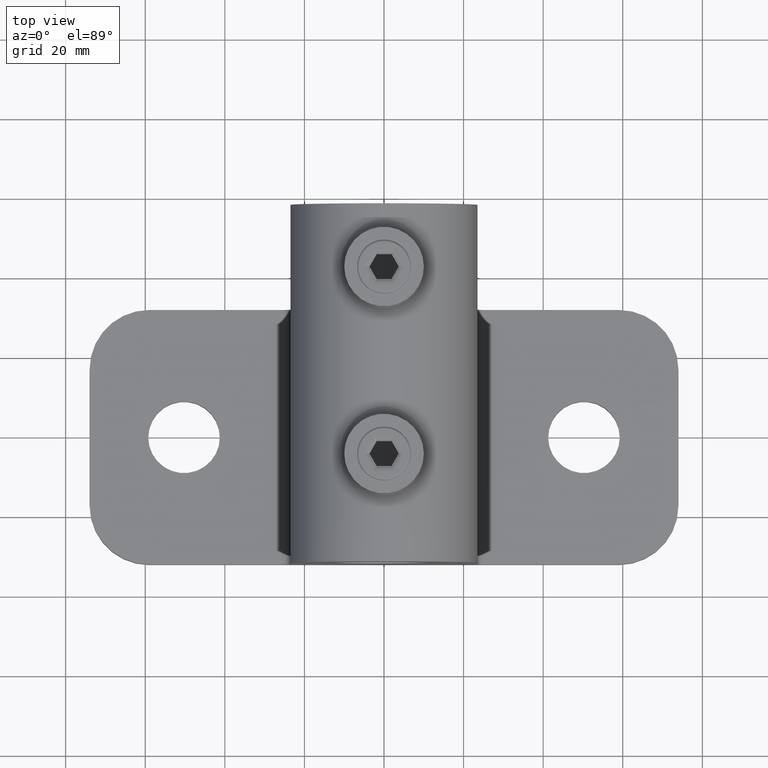
[diagram: clean part render]
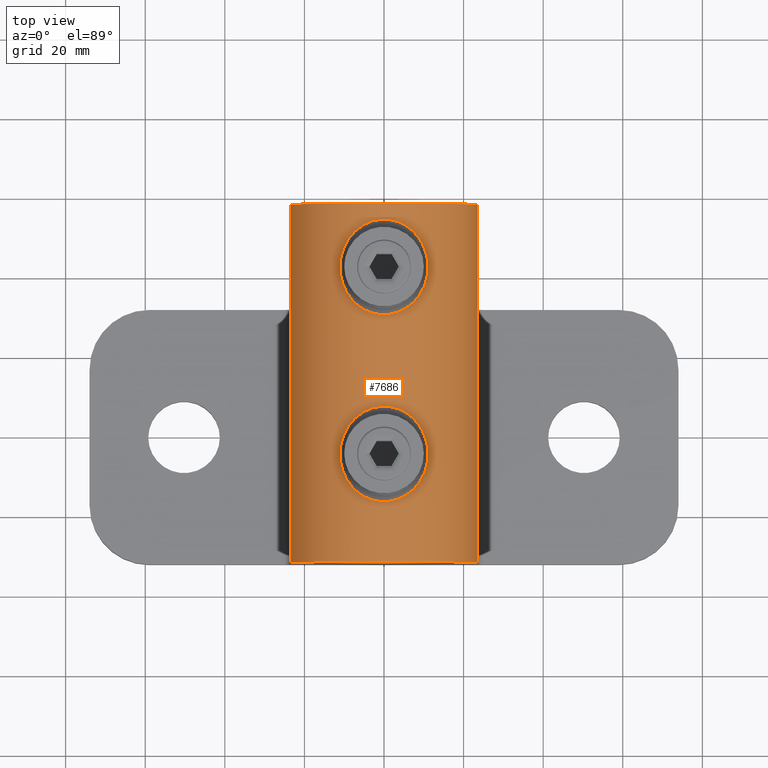
[diagram: same view with one face highlighted and labeled with its STEP entity id]
A machine part, top view. The second image highlights one B-rep face of the part: STEP entity #7686.
In plain terms, the highlighted cylindrical surface (partial cylindrical patch) has radius 23.5 mm, axis along (-0, -1, 0).
Its self-contained STEP definition (entity closure, byte-faithful):
#121 = CARTESIAN_POINT ( 'NONE',  ( -8.103348831627954500, 50.17509293145658900, 54.06010407994648400 ) ) ;
#157 = CARTESIAN_POINT ( 'NONE',  ( -2.469780579537794300, 6.703988613167270600, 55.37270949107873000 ) ) ;
#161 = CARTESIAN_POINT ( 'NONE',  ( 10.55586610991981500, -8.598058644879804600, 52.99620088965919300 ) ) ;
#220 = CARTESIAN_POINT ( 'NONE',  ( -3.187238685543294800, -16.49815538394374700, 55.28577807090088200 ) ) ;
#314 = CARTESIAN_POINT ( 'NONE',  ( 10.65684907534073700, -8.228870973245671300, 52.94494049807793300 ) ) ;
#327 = FACE_BOUND ( 'NONE', #4881, .T. ) ;
#363 = CARTESIAN_POINT ( 'NONE',  ( 4.588043577227941800, -15.92581076868567900, 55.05023048489103100 ) ) ;
#473 = CARTESIAN_POINT ( 'NONE',  ( -8.567352893849186300, -12.59758543217488100, 53.88407159401512600 ) ) ;
#504 = ORIENTED_EDGE ( 'NONE', *, *, #4589, .F. ) ;
#524 = VERTEX_POINT ( 'NONE', #4832 ) ;
#528 = CARTESIAN_POINT ( 'NONE',  ( -6.207143492603426800, 4.962066832698882400, 54.67318832223761400 ) ) ;
#543 = CARTESIAN_POINT ( 'NONE',  ( 11.04638734084501400, -4.431064152689651300, 52.74192196292376900 ) ) ;
#581 = CARTESIAN_POINT ( 'NONE',  ( -10.65999327473157300, -8.216487932979083200, 52.94333746456240400 ) ) ;
#583 = CARTESIAN_POINT ( 'NONE',  ( -2.100255021234504600, 6.788877360666340600, 55.40901085411737600 ) ) ;
#695 = CARTESIAN_POINT ( 'NONE',  ( 8.575454145850878600, 49.58696010016158300, 53.88091656205480700 ) ) ;
#723 = LINE ( 'NONE', #1919, #2838 ) ;
#735 = CARTESIAN_POINT ( 'NONE',  ( 5.252307260265248500, 5.567859657860299000, 54.90804544646285000 ) ) ;
#751 = CARTESIAN_POINT ( 'NONE',  ( 5.577358442402617900, 52.36973240773381400, 54.83081060664355300 ) ) ;
#796 = CARTESIAN_POINT ( 'NONE',  ( 11.06327841971134000, 42.18278321898981900, 52.73292639346325900 ) ) ;
#855 = CARTESIAN_POINT ( 'NONE',  ( 4.588306621135059200, 5.925811600081403600, 55.05022169272760400 ) ) ;
#905 = CARTESIAN_POINT ( 'NONE',  ( -7.337523481230830300, 33.01355672399512300, 54.32679184564841500 ) ) ;
#962 = CARTESIAN_POINT ( 'NONE',  ( 1.343179375375645800, 30.05990720661799600, 55.47404339929063600 ) ) ;
#1009 = VERTEX_POINT ( 'NONE', #6224 ) ;
#1022 = CARTESIAN_POINT ( 'NONE',  ( -10.65999327473157800, 38.78351206702092900, 52.94333746456241800 ) ) ;
#1063 = EDGE_LOOP ( 'NONE', ( #14765, #6018 ) ) ;
#1070 = CARTESIAN_POINT ( 'NONE',  ( -10.55899345320716000, 38.41271779272297900, 52.99462718602747900 ) ) ;
#1350 = CARTESIAN_POINT ( 'NONE',  ( -7.331800717024084000, 50.99205998391786900, 54.32869701530556500 ) ) ;
#1392 = CARTESIAN_POINT ( 'NONE',  ( -1.346352965264690600, 6.917933396564202500, 55.46444531659185600 ) ) ;
#1440 = CARTESIAN_POINT ( 'NONE',  ( -9.906853429644378700, 0.3464672829948430800, 53.31034403052277800 ) ) ;
#1443 = CARTESIAN_POINT ( 'NONE',  ( 3.181487342247607800, -16.49995336974986400, 55.28653423162133900 ) ) ;
#1495 = CARTESIAN_POINT ( 'NONE',  ( 8.092257557463939900, -13.18791043067730400, 54.06416295705017900 ) ) ;
#1651 = CARTESIAN_POINT ( 'NONE',  ( -8.101257655902454500, -13.17747805790251900, 54.06086465967295100 ) ) ;
#1760 = CARTESIAN_POINT ( 'NONE',  ( -4.590852116425562500, 5.924641816184400300, 55.04974408234552600 ) ) ;
#1813 = CARTESIAN_POINT ( 'NONE',  ( 9.408494413059957000, 1.352612361502983500, 53.53895303035036300 ) ) ;
#1824 = CARTESIAN_POINT ( 'NONE',  ( 9.408494413059960600, 48.35261236150297000, 53.53895303035035600 ) ) ;
#1873 = CARTESIAN_POINT ( 'NONE',  ( 2.079803646508350000, 53.79314100990811900, 55.41083613801312400 ) ) ;
#1911 = CARTESIAN_POINT ( 'NONE',  ( 0.1891830886921068400, 7.027067877012971300, 55.51172258753092600 ) ) ;
#1919 = CARTESIAN_POINT ( 'NONE',  ( -23.49999999999999600, 65.23401871576774600, 32.00000000000000000 ) ) ;
#1931 = CARTESIAN_POINT ( 'NONE',  ( 3.549633088216735700, 53.37224987162141300, 55.23306787663049300 ) ) ;
#1973 = CARTESIAN_POINT ( 'NONE',  ( 3.191810671705809000, 6.496705004979762800, 55.28516853030789900 ) ) ;
#2025 = CARTESIAN_POINT ( 'NONE',  ( 8.106427728911343800, 3.171576633938556300, 54.05898349605285300 ) ) ;
#2035 = CARTESIAN_POINT ( 'NONE',  ( 9.760008313947347200, 47.69435396838576200, 53.37985410668968500 ) ) ;
#2142 = CARTESIAN_POINT ( 'NONE',  ( -6.191982094519119100, 32.04945908567151500, 54.67182844705297400 ) ) ;
#2200 = CARTESIAN_POINT ( 'NONE',  ( -2.455141803039009800, 30.29225147163268500, 55.37430703855930100 ) ) ;
#2299 = CARTESIAN_POINT ( 'NONE',  ( 8.776888239144341200, 34.68952983927899700, 53.80059442484800100 ) ) ;
#2462 = EDGE_CURVE ( 'NONE', #4093, #2928, #11812, .T. ) ;
#2515 = VECTOR ( 'NONE', #9520, 1000.000000000000000 ) ;
#2646 = CARTESIAN_POINT ( 'NONE',  ( 2.089040176911559400, -16.81225506167127600, 55.41845562919695600 ) ) ;
#2657 = CARTESIAN_POINT ( 'NONE',  ( -10.33201417602158400, 46.29541852216307500, 53.10724888090438600 ) ) ;
#2684 = CARTESIAN_POINT ( 'NONE',  ( -8.804308778427056800, 2.302339655697222200, 53.79412682707393900 ) ) ;
#2686 = CARTESIAN_POINT ( 'NONE',  ( -5.262325942540881500, -15.58416357939280900, 54.91217395273184800 ) ) ;
#2743 = CARTESIAN_POINT ( 'NONE',  ( -11.02999850401301000, -4.052071956405911600, 52.75065034225144700 ) ) ;
#2746 = CARTESIAN_POINT ( 'NONE',  ( 6.189543347348165800, -14.97543230115332900, 54.67813625780455300 ) ) ;
#2838 = VECTOR ( 'NONE', #6837, 1000.000000000000000 ) ;
#2928 = VERTEX_POINT ( 'NONE', #12697 ) ;
#2987 = CARTESIAN_POINT ( 'NONE',  ( -10.19642626997017800, -9.661241671569454700, 53.17330659948184000 ) ) ;
#2990 = CARTESIAN_POINT ( 'NONE',  ( -10.84379924904157200, -2.522251910308611400, 52.84886505870855400 ) ) ;
#3060 = CARTESIAN_POINT ( 'NONE',  ( 4.588306621135076000, 52.92581160008139600, 55.05022169272759700 ) ) ;
#3102 = CARTESIAN_POINT ( 'NONE',  ( -10.32736610338406200, -9.308706414310298900, 53.10952919398793900 ) ) ;
#3110 = ORIENTED_EDGE ( 'NONE', *, *, #3155, .F. ) ;
#3119 = CARTESIAN_POINT ( 'NONE',  ( -2.100255021234484200, 53.78887736066634100, 55.40901085411737600 ) ) ;
#3155 = EDGE_CURVE ( 'NONE', #4539, #6219, #15448, .T. ) ;
#3285 = CARTESIAN_POINT ( 'NONE',  ( -0.9596013523633988300, 53.96197657186118600, 55.48352374672629100 ) ) ;
#3335 = CARTESIAN_POINT ( 'NONE',  ( 10.95997595156536200, 40.26797219309948200, 52.78793141358003300 ) ) ;
#3379 = AXIS2_PLACEMENT_3D ( 'NONE', #11388, #11450, #6362 ) ;
#3384 = CARTESIAN_POINT ( 'NONE',  ( -0.1928688573709052800, 29.99462343128940100, 55.50232552387329600 ) ) ;
#3395 = DIRECTION ( 'NONE',  ( -9.376883653928692300E-017, -1.000000000000000000, 0.0000000000000000000 ) ) ;
#3444 = CARTESIAN_POINT ( 'NONE',  ( 10.82527559152685900, 39.51698072012857200, 52.85838855353188100 ) ) ;
#3504 = CARTESIAN_POINT ( 'NONE',  ( 10.55586610991981400, 38.40194135512017200, 52.99620088965918500 ) ) ;
#3638 = DIRECTION ( 'NONE',  ( -9.376883653928692300E-017, -1.000000000000000000, 0.0000000000000000000 ) ) ;
#3890 = CARTESIAN_POINT ( 'NONE',  ( -11.04559101494953700, -5.586857981013096700, 52.74234603728484700 ) ) ;
#3894 = CARTESIAN_POINT ( 'NONE',  ( -2.085013389113652900, -16.79195605088328200, 55.41032947673182500 ) ) ;
#3989 = CARTESIAN_POINT ( 'NONE',  ( 0.1964004493054620500, -17.00529495347085500, 55.50229005756814600 ) ) ;
#4083 = ORIENTED_EDGE ( 'NONE', *, *, #7855, .T. ) ;
#4093 = VERTEX_POINT ( 'NONE', #5992 ) ;
#4100 = CARTESIAN_POINT ( 'NONE',  ( 4.247852143305421700, -16.08695185346726600, 55.11565154584175700 ) ) ;
#4145 = CARTESIAN_POINT ( 'NONE',  ( -7.337523481230841900, -13.98644327600485600, 54.32679184564842200 ) ) ;
#4182 = VERTEX_POINT ( 'NONE', #7460 ) ;
#4199 = CARTESIAN_POINT ( 'NONE',  ( -9.213292034440394600, 1.681053641429127300, 53.62209489883935700 ) ) ;
#4248 = CARTESIAN_POINT ( 'NONE',  ( -7.059417136609151400, 4.245170922493156400, 54.41657097884743200 ) ) ;
#4266 = CARTESIAN_POINT ( 'NONE',  ( -11.06333453208126500, 42.17710634782082500, 52.73289621968353200 ) ) ;
#4310 = CARTESIAN_POINT ( 'NONE',  ( 2.079803646508336300, 6.793141009908133300, 55.41083613801314600 ) ) ;
#4357 = CARTESIAN_POINT ( 'NONE',  ( -10.55899345320715300, -8.587282207277031200, 52.99462718602747900 ) ) ;
#4371 = CARTESIAN_POINT ( 'NONE',  ( -1.346352965264670900, 53.91793339656420200, 55.46444531659186300 ) ) ;
#4428 = CARTESIAN_POINT ( 'NONE',  ( 6.508734359227576100, 51.73407621570255800, 54.58977064174957400 ) ) ;
#4539 = VERTEX_POINT ( 'NONE', #9463 ) ;
#4578 = CARTESIAN_POINT ( 'NONE',  ( 7.049446103414318500, 32.74574568334022500, 54.41974324962531300 ) ) ;
#4589 = EDGE_CURVE ( 'NONE', #2928, #4539, #11732, .T. ) ;
#4636 = CARTESIAN_POINT ( 'NONE',  ( -0.9581545826820351300, 30.03789773256528800, 55.48357816053455600 ) ) ;
#4704 = CARTESIAN_POINT ( 'NONE',  ( -11.04559101494954200, 41.41314201898691000, 52.74234603728484000 ) ) ;
#4755 = CARTESIAN_POINT ( 'NONE',  ( 3.181487342247610400, 30.50004663025011800, 55.28653423162133900 ) ) ;
#4770 = VERTEX_POINT ( 'NONE', #7813 ) ;
#4832 = CARTESIAN_POINT ( 'NONE',  ( -23.49999999999999600, 57.99999999999997900, 32.00000000000000000 ) ) ;
#4881 = EDGE_LOOP ( 'NONE', ( #7594, #4083 ) ) ;
#5145 = CARTESIAN_POINT ( 'NONE',  ( -10.99605016681684300, -3.666353679779677900, 52.76873057811395300 ) ) ;
#5147 = CARTESIAN_POINT ( 'NONE',  ( 9.382324461442713900, -11.36379011360562100, 53.54668824643209000 ) ) ;
#5256 = CARTESIAN_POINT ( 'NONE',  ( -3.550931560227738700, -16.37184757723151300, 55.23289704809592800 ) ) ;
#5347 = CARTESIAN_POINT ( 'NONE',  ( 11.06287470745320800, -5.204246021678725900, 52.73314225909341200 ) ) ;
#5460 = CARTESIAN_POINT ( 'NONE',  ( -7.855442251217017000, -13.45524037256210400, 54.14987385955776500 ) ) ;
#5514 = CARTESIAN_POINT ( 'NONE',  ( -4.247846415823190100, 6.086806579130724900, 55.11559779804054700 ) ) ;
#5560 = CARTESIAN_POINT ( 'NONE',  ( -10.91086520548631200, -7.100845738420703800, 52.81437924981600000 ) ) ;
#5565 = CARTESIAN_POINT ( 'NONE',  ( 3.549633088216714900, 6.372249871621421300, 55.23306787663051400 ) ) ;
#5635 = CARTESIAN_POINT ( 'NONE',  ( 0.9489910323637708000, 53.98436626852331000, 55.49299349968454500 ) ) ;
#5658 = CARTESIAN_POINT ( 'NONE',  ( -23.50000000000000000, 33.99999999999998600, 32.00000000000000000 ) ) ;
#5691 = CARTESIAN_POINT ( 'NONE',  ( 2.457635344426594100, 53.70717475178336300, 55.37406163598190300 ) ) ;
#5724 = CARTESIAN_POINT ( 'NONE',  ( 5.577358442402609000, 5.369732407733828000, 54.83081060664358100 ) ) ;
#5781 = CARTESIAN_POINT ( 'NONE',  ( 9.760008313947343700, 0.6943539683857770100, 53.37985410668969200 ) ) ;
#5795 = CARTESIAN_POINT ( 'NONE',  ( 6.938893903907231500E-015, 57.99999999999997900, 32.00000000000000000 ) ) ;
#5851 = CARTESIAN_POINT ( 'NONE',  ( 9.188833947655584900, 35.31204527966190900, 53.63018758868160100 ) ) ;
#5904 = CARTESIAN_POINT ( 'NONE',  ( -8.788242295452867800, 34.70548294025433500, 53.79602857860576400 ) ) ;
#5914 = DIRECTION ( 'NONE',  ( 1.000000000000000000, 0.0000000000000000000, 0.0000000000000000000 ) ) ;
#5956 = CARTESIAN_POINT ( 'NONE',  ( 9.915053677358505600, 36.63026785764284200, 53.30945464647010800 ) ) ;
#5992 = CARTESIAN_POINT ( 'NONE',  ( 23.50000000000001100, 57.99999999999997900, 32.00000000000000000 ) ) ;
#6007 = CARTESIAN_POINT ( 'NONE',  ( -3.187238685543294800, 30.50184461605625700, 55.28577807090089600 ) ) ;
#6018 = ORIENTED_EDGE ( 'NONE', *, *, #10811, .T. ) ;
#6068 = CARTESIAN_POINT ( 'NONE',  ( 9.382324461442708600, 35.63620988639435400, 53.54668824643204800 ) ) ;
#6219 = VERTEX_POINT ( 'NONE', #10783 ) ;
#6224 = CARTESIAN_POINT ( 'NONE',  ( 11.04638734084501700, 42.56893584731032800, 52.74192196292376900 ) ) ;
#6353 = CARTESIAN_POINT ( 'NONE',  ( -7.059417136609139800, 51.24517092249317300, 54.41657097884741700 ) ) ;
#6362 = DIRECTION ( 'NONE',  ( 1.000000000000000000, 0.0000000000000000000, 0.0000000000000000000 ) ) ;
#6407 = CARTESIAN_POINT ( 'NONE',  ( -11.02999850401300600, 42.94792804359408900, 52.75065034225144000 ) ) ;
#6449 = CARTESIAN_POINT ( 'NONE',  ( 11.06327841971133100, -4.817216781010158900, 52.73292639346324500 ) ) ;
#6609 = CARTESIAN_POINT ( 'NONE',  ( 5.575358895291196300, -15.39399100163750800, 54.83896780244817400 ) ) ;
#6710 = CARTESIAN_POINT ( 'NONE',  ( -10.67690845612309400, -1.782412401262576200, 52.93608164951995600 ) ) ;
#6727 = CARTESIAN_POINT ( 'NONE',  ( -11.06277689196310900, 41.79400808427330100, 52.73319431604831200 ) ) ;
#6763 = CARTESIAN_POINT ( 'NONE',  ( -6.493256339105507800, -14.72162782786918300, 54.58709578556068500 ) ) ;
#6782 = EDGE_CURVE ( 'NONE', #9707, #6219, #723, .T. ) ;
#6827 = CARTESIAN_POINT ( 'NONE',  ( -7.065425334262503300, -14.23988707198567400, 54.41470585926543900 ) ) ;
#6830 = CARTESIAN_POINT ( 'NONE',  ( 8.794624304732646900, 2.285268448093948000, 53.79343133904483700 ) ) ;
#6837 = DIRECTION ( 'NONE',  ( -9.376883653928691100E-017, -1.000000000000000000, 0.0000000000000000000 ) ) ;
#6844 = CARTESIAN_POINT ( 'NONE',  ( 10.56431018278238400, 45.56879714052136200, 52.99194865801759800 ) ) ;
#6897 = CARTESIAN_POINT ( 'NONE',  ( 7.076770864827722100, 51.25396585523396500, 54.41587948190196800 ) ) ;
#6988 = CARTESIAN_POINT ( 'NONE',  ( 11.04638734084501700, 42.56893584731032800, 52.74192196292376900 ) ) ;
#7008 = CARTESIAN_POINT ( 'NONE',  ( 5.252307260265267200, 52.56785965786029600, 54.90804544646284300 ) ) ;
#7055 = CARTESIAN_POINT ( 'NONE',  ( 10.66314982839041300, -1.796199452593392900, 52.94172589793321700 ) ) ;
#7103 = CARTESIAN_POINT ( 'NONE',  ( 5.575358895291186600, 31.60600899836248000, 54.83896780244817400 ) ) ;
#7162 = CARTESIAN_POINT ( 'NONE',  ( -9.758987628912246100, 36.30464490746469900, 53.38027700000941400 ) ) ;
#7221 = CARTESIAN_POINT ( 'NONE',  ( -3.550931560227740000, 30.62815242276847300, 55.23289704809593600 ) ) ;
#7275 = CARTESIAN_POINT ( 'NONE',  ( -10.19642626997018000, 37.33875832843054400, 53.17330659948181200 ) ) ;
#7316 = CARTESIAN_POINT ( 'NONE',  ( 6.189543347348159600, 32.02456769884665300, 54.67813625780456700 ) ) ;
#7460 = CARTESIAN_POINT ( 'NONE',  ( -11.04559101494953700, -5.586857981013096700, 52.74234603728484700 ) ) ;
#7594 = ORIENTED_EDGE ( 'NONE', *, *, #12340, .T. ) ;
#7595 = CARTESIAN_POINT ( 'NONE',  ( -10.20117068532843500, -0.3506596632791866300, 53.17103266788115000 ) ) ;
#7598 = CARTESIAN_POINT ( 'NONE',  ( 1.343179375375641400, -16.94009279338198900, 55.47404339929064300 ) ) ;
#7611 = CARTESIAN_POINT ( 'NONE',  ( -6.207143492603412600, 51.96206683269888800, 54.67318832223758600 ) ) ;
#7663 = CARTESIAN_POINT ( 'NONE',  ( -10.99605016681684500, 43.33364632022032500, 52.76873057811395300 ) ) ;
#7686 = ADVANCED_FACE ( 'NONE', ( #327, #15949, #13061 ), #9812, .T. ) ;
#7694 = CARTESIAN_POINT ( 'NONE',  ( 10.95997595156536500, -6.732027806900498800, 52.78793141358006800 ) ) ;
#7796 = B_SPLINE_CURVE_WITH_KNOTS ( 'NONE', 3,
 ( #13878, #6727, #4266, #6407, #7663, #9203, #12880, #2657, #8879, #13727, #13668, #11327, #14905, #121, #8784, #1350, #6353, #7611, #15476, #8178, #15522, #11747, #14243, #9357, #3119, #4371, #3285, #13000, #5635, #1873, #5691, #14141, #1931, #9459, #3060, #7008, #751, #4428, #6897, #8025, #8120, #695, #13046, #1824, #2035, #10697, #9405, #6844, #15577, #10583, #12940, #14306 ),
 .UNSPECIFIED., .F., .F.,
 ( 4, 2, 2, 2, 2, 2, 2, 2, 2, 2, 2, 2, 2, 2, 2, 2, 2, 2, 2, 2, 2, 2, 2, 2, 2, 4 ),
 ( 0.03614282262791941600, 0.03729033066558146100, 0.03843783870324351400, 0.04073285477856762600, 0.04188036281622969200, 0.04302787085389175900, 0.04532288692921589100, 0.04647039496687795800, 0.04761790300454002400, 0.04991291907986415000, 0.05106042711752620900, 0.05220793515518826200, 0.05335544319285032100, 0.05450295123051238100, 0.05679796730583650000, 0.05794547534349855900, 0.05909298338116061900, 0.06024049141882267100, 0.06138799945648473100, 0.06368301553180882900, 0.06483052356947086000, 0.06597803160713290600, 0.06827304768245696900, 0.06942055572011901500, 0.07056806375778104700, 0.07286307983310513800 ),
 .UNSPECIFIED. ) ;
#7801 = CARTESIAN_POINT ( 'NONE',  ( 7.049446103414323900, -14.25425431665974300, 54.41974324962529900 ) ) ;
#7813 = CARTESIAN_POINT ( 'NONE',  ( -11.04559101494954200, 41.41314201898691000, 52.74234603728484000 ) ) ;
#7855 = EDGE_CURVE ( 'NONE', #4182, #10787, #15663, .T. ) ;
#7921 = EDGE_CURVE ( 'NONE', #1009, #4770, #13704, .T. ) ;
#7924 = VECTOR ( 'NONE', #15800, 1000.000000000000000 ) ;
#7953 = CARTESIAN_POINT ( 'NONE',  ( -7.853633067012914600, 3.457345176461472200, 54.15054084676472700 ) ) ;
#7963 = ORIENTED_EDGE ( 'NONE', *, *, #6782, .T. ) ;
#8013 = CARTESIAN_POINT ( 'NONE',  ( -3.194840038948846100, 6.495534712429834400, 55.28468084795135700 ) ) ;
#8025 = CARTESIAN_POINT ( 'NONE',  ( 7.857262891103685500, 50.45333201150531700, 54.14924388247131000 ) ) ;
#8105 = CARTESIAN_POINT ( 'NONE',  ( 11.04638734084501400, -4.431064152689651300, 52.74192196292376900 ) ) ;
#8120 = CARTESIAN_POINT ( 'NONE',  ( 8.106427728911349100, 50.17157663393855000, 54.05898349605285300 ) ) ;
#8163 = CARTESIAN_POINT ( 'NONE',  ( -0.9596013523634175900, 6.961976571861161000, 55.48352374672628400 ) ) ;
#8178 = CARTESIAN_POINT ( 'NONE',  ( -4.590852116425534900, 52.92464181618439800, 55.04974408234551200 ) ) ;
#8216 = CARTESIAN_POINT ( 'NONE',  ( 10.20126103292526000, -0.3509065927586305600, 53.17098850587854700 ) ) ;
#8269 = CARTESIAN_POINT ( 'NONE',  ( 10.33379357183640900, -0.7094823312961496800, 53.10637980596290200 ) ) ;
#8323 = CARTESIAN_POINT ( 'NONE',  ( 4.247852143305426200, 30.91304814653273400, 55.11565154584176400 ) ) ;
#8443 = CARTESIAN_POINT ( 'NONE',  ( 2.089040176911560300, 30.18774493832870600, 55.41845562919697000 ) ) ;
#8784 = CARTESIAN_POINT ( 'NONE',  ( -7.853633067012901300, 50.45734517646148000, 54.15054084676472000 ) ) ;
#8865 = CARTESIAN_POINT ( 'NONE',  ( -10.33201417602158400, -0.7045814778369424700, 53.10724888090437900 ) ) ;
#8879 = CARTESIAN_POINT ( 'NONE',  ( -10.20117068532843500, 46.64934033672082600, 53.17103266788114300 ) ) ;
#8922 = CARTESIAN_POINT ( 'NONE',  ( -11.06277689196310600, -5.205991915726719400, 52.73319431604831900 ) ) ;
#8926 = CARTESIAN_POINT ( 'NONE',  ( 10.82527559152685500, -7.483019279871419000, 52.85838855353185300 ) ) ;
#8978 = CARTESIAN_POINT ( 'NONE',  ( 8.557655314237210900, -12.61038562997377500, 53.88786090266257400 ) ) ;
#9025 = CARTESIAN_POINT ( 'NONE',  ( 9.188833947655588500, -11.68795472033807500, 53.63018758868162900 ) ) ;
#9192 = CARTESIAN_POINT ( 'NONE',  ( -5.592616441570731600, 5.383995523207108400, 54.83504199697290500 ) ) ;
#9203 = CARTESIAN_POINT ( 'NONE',  ( -10.84379924904157200, 44.47774808969139600, 52.84886505870855400 ) ) ;
#9357 = CARTESIAN_POINT ( 'NONE',  ( -2.469780579537776500, 53.70398861316726900, 55.37270949107870900 ) ) ;
#9398 = EDGE_LOOP ( 'NONE', ( #10756, #12332, #7963, #3110, #504, #9574 ) ) ;
#9405 = CARTESIAN_POINT ( 'NONE',  ( 10.33379357183642500, 46.29051766870383500, 53.10637980596290200 ) ) ;
#9459 = CARTESIAN_POINT ( 'NONE',  ( 4.247882830037600100, 53.08680635196524400, 55.11559710419256000 ) ) ;
#9463 = CARTESIAN_POINT ( 'NONE',  ( 23.50000000000000700, -32.00000000000001400, 32.00000000000000000 ) ) ;
#9520 = DIRECTION ( 'NONE',  ( -9.376883653928692300E-017, -1.000000000000000000, 0.0000000000000000000 ) ) ;
#9566 = CARTESIAN_POINT ( 'NONE',  ( 8.557655314237209200, 34.38961437002621600, 53.88786090266260200 ) ) ;
#9574 = ORIENTED_EDGE ( 'NONE', *, *, #2462, .F. ) ;
#9616 = CARTESIAN_POINT ( 'NONE',  ( -8.101257655902445600, 33.82252194209746000, 54.06086465967294400 ) ) ;
#9640 = AXIS2_PLACEMENT_3D ( 'NONE', #5795, #3395, #5914 ) ;
#9671 = CARTESIAN_POINT ( 'NONE',  ( 4.588043577227931100, 31.07418923131431800, 55.05023048489102400 ) ) ;
#9707 = VERTEX_POINT ( 'NONE', #5658 ) ;
#9812 = CYLINDRICAL_SURFACE ( 'NONE', #9640, 23.50000000000000400 ) ;
#10042 = CARTESIAN_POINT ( 'NONE',  ( 7.846096171717659800, -13.46552115145971300, 54.15320316181438200 ) ) ;
#10107 = CARTESIAN_POINT ( 'NONE',  ( -4.603626226643504200, -15.94112021481968200, 55.05565237282917200 ) ) ;
#10254 = CARTESIAN_POINT ( 'NONE',  ( 3.543329673718196300, -16.37469254102692400, 55.23407861404252400 ) ) ;
#10336 = EDGE_CURVE ( 'NONE', #524, #9707, #10822, .T. ) ;
#10516 = CARTESIAN_POINT ( 'NONE',  ( -9.408376388310065500, -11.35367308413511000, 53.53909727699453200 ) ) ;
#10570 = CARTESIAN_POINT ( 'NONE',  ( 10.56431018278237100, -1.431202859478615000, 52.99194865801759800 ) ) ;
#10583 = CARTESIAN_POINT ( 'NONE',  ( 10.91125573518419000, 44.09635367798927800, 52.81415599223012700 ) ) ;
#10697 = CARTESIAN_POINT ( 'NONE',  ( 10.20126103292526700, 46.64909340724137400, 53.17098850587855500 ) ) ;
#10756 = ORIENTED_EDGE ( 'NONE', *, *, #13688, .T. ) ;
#10783 = CARTESIAN_POINT ( 'NONE',  ( -23.50000000000000700, -32.00000000000001400, 32.00000000000000000 ) ) ;
#10787 = VERTEX_POINT ( 'NONE', #543 ) ;
#10788 = CARTESIAN_POINT ( 'NONE',  ( 10.20790253364733900, 37.32133058151512700, 53.16874513006074900 ) ) ;
#10811 = EDGE_CURVE ( 'NONE', #4770, #1009, #7796, .T. ) ;
#10822 = LINE ( 'NONE', #15792, #2515 ) ;
#10900 = CARTESIAN_POINT ( 'NONE',  ( -1.336519390608484200, 30.08086881755499700, 55.46496373234891300 ) ) ;
#10944 = CARTESIAN_POINT ( 'NONE',  ( 3.543329673718199000, 30.62530745897306200, 55.23407861404253800 ) ) ;
#11278 = CARTESIAN_POINT ( 'NONE',  ( -0.1928688573709056400, -17.00537656871058800, 55.50232552387329600 ) ) ;
#11327 = CARTESIAN_POINT ( 'NONE',  ( -9.213292034440394600, 48.68105364142915200, 53.62209489883937900 ) ) ;
#11366 = CARTESIAN_POINT ( 'NONE',  ( -9.743457462494561100, 0.6889719626032426700, 53.38580069013395500 ) ) ;
#11368 = CARTESIAN_POINT ( 'NONE',  ( 10.20790253364733900, -9.678669418484856700, 53.16874513006075600 ) ) ;
#11388 = CARTESIAN_POINT ( 'NONE',  ( -1.500301384628590600E-015, -32.00000000000001400, 32.00000000000000000 ) ) ;
#11391 = CARTESIAN_POINT ( 'NONE',  ( 6.938893903907231500E-015, 57.99999999999997900, 32.00000000000000000 ) ) ;
#11450 = DIRECTION ( 'NONE',  ( -9.376883653928691100E-017, -1.000000000000000000, 0.0000000000000000000 ) ) ;
#11476 = CARTESIAN_POINT ( 'NONE',  ( 9.915053677358509200, -10.36973214235713800, 53.30945464647013000 ) ) ;
#11638 = CARTESIAN_POINT ( 'NONE',  ( -7.331800717024098200, 3.992059983917855900, 54.32869701530557200 ) ) ;
#11681 = CARTESIAN_POINT ( 'NONE',  ( -9.758987628912235500, -10.69535509253530100, 53.38027700000940700 ) ) ;
#11683 = CARTESIAN_POINT ( 'NONE',  ( 0.9489910323637542600, 6.984366268523305400, 55.49299349968455200 ) ) ;
#11732 = LINE ( 'NONE', #12049, #7924 ) ;
#11747 = CARTESIAN_POINT ( 'NONE',  ( -3.550371254506054200, 53.37196275444610200, 55.23294911732850200 ) ) ;
#11812 = LINE ( 'NONE', #14745, #13950 ) ;
#11965 = CARTESIAN_POINT ( 'NONE',  ( 7.325503195095234500, 33.00195224981850100, 54.33075543735846200 ) ) ;
#12032 = CARTESIAN_POINT ( 'NONE',  ( 11.02824908602860500, 41.02924015954288000, 52.75158082713512900 ) ) ;
#12049 = CARTESIAN_POINT ( 'NONE',  ( 23.50000000000001800, 65.23401871576774600, 32.00000000000000000 ) ) ;
#12080 = CARTESIAN_POINT ( 'NONE',  ( -7.855442251217013400, 33.54475962743787000, 54.14987385955777200 ) ) ;
#12131 = CARTESIAN_POINT ( 'NONE',  ( 10.65684907534073900, 38.77112902675431600, 52.94494049807794800 ) ) ;
#12187 = CARTESIAN_POINT ( 'NONE',  ( -8.567352893849186300, 34.40241456782509700, 53.88407159401510400 ) ) ;
#12332 = ORIENTED_EDGE ( 'NONE', *, *, #10336, .T. ) ;
#12340 = EDGE_CURVE ( 'NONE', #10787, #4182, #13213, .T. ) ;
#12428 = AXIS2_PLACEMENT_3D ( 'NONE', #11391, #15065, #12677 ) ;
#12504 = CARTESIAN_POINT ( 'NONE',  ( -11.06333453208126000, -4.822893652179162800, 52.73289621968352500 ) ) ;
#12508 = CARTESIAN_POINT ( 'NONE',  ( -2.455141803039008900, -16.70774852836730100, 55.37430703855930100 ) ) ;
#12611 = CARTESIAN_POINT ( 'NONE',  ( -1.336519390608484900, -16.91913118244500300, 55.46496373234891300 ) ) ;
#12677 = DIRECTION ( 'NONE',  ( 1.000000000000000000, 0.0000000000000000000, 0.0000000000000000000 ) ) ;
#12697 = CARTESIAN_POINT ( 'NONE',  ( 23.50000000000001400, 33.99999999999998600, 32.00000000000000000 ) ) ;
#12880 = CARTESIAN_POINT ( 'NONE',  ( -10.67690845612309400, 45.21758759873743800, 52.93608164951996300 ) ) ;
#12922 = CARTESIAN_POINT ( 'NONE',  ( 4.247882830037577900, 6.086806351965239300, 55.11559710419253800 ) ) ;
#12940 = CARTESIAN_POINT ( 'NONE',  ( 11.01259189005111800, 43.34154500109049500, 52.75992018124197400 ) ) ;
#13000 = CARTESIAN_POINT ( 'NONE',  ( 0.1891830886921255000, 54.02706787701296800, 55.51172258753093300 ) ) ;
#13032 = CARTESIAN_POINT ( 'NONE',  ( 7.076770864827714100, 4.253965855233971600, 54.41587948190198900 ) ) ;
#13046 = CARTESIAN_POINT ( 'NONE',  ( 8.794624304732652200, 49.28526844809395200, 53.79343133904483000 ) ) ;
#13061 = FACE_OUTER_BOUND ( 'NONE', #9398, .T. ) ;
#13213 = B_SPLINE_CURVE_WITH_KNOTS ( 'NONE', 3,
 ( #13822, #6449, #5347, #15040, #7694, #8926, #314, #161, #11368, #11476, #5147, #9025, #13922, #8978, #1495, #10042, #15146, #7801, #2746, #6609, #363, #4100, #10254, #1443, #2646, #7598, #3989, #11278, #13773, #12611, #3894, #12508, #220, #5256, #10107, #2686, #13866, #6763, #6827, #4145, #5460, #1651, #473, #14176, #10516, #11681, #2987, #3102, #4357, #581, #5560, #15399, #15301 ),
 .UNSPECIFIED., .F., .F.,
 ( 4, 2, 1, 2, 2, 2, 2, 2, 2, 2, 2, 2, 2, 2, 2, 2, 2, 2, 2, 2, 2, 2, 2, 2, 2, 2, 4 ),
 ( 0.07286307983310511000, 0.07401013651135979200, 0.07515719318961447400, 0.07630424986786915600, 0.07745130654612383800, 0.07974541990263318800, 0.08089247658088787000, 0.08203953325914253900, 0.08318658993739722100, 0.08433364661565188900, 0.08662775997216125300, 0.08777481665041593500, 0.08892187332867061700, 0.09121598668517996700, 0.09236304336343464900, 0.09351010004168933100, 0.09465715671994399900, 0.09580421339819868200, 0.09809832675470803200, 0.09924538343296271400, 0.1003924401112174000, 0.1015394967894720800, 0.1026865534677267600, 0.1049806668242361000, 0.1061277235024907800, 0.1072747801807454600, 0.1095688935372548100 ),
 .UNSPECIFIED. ) ;
#13216 = CARTESIAN_POINT ( 'NONE',  ( 0.1964004493054633800, 29.99470504652913800, 55.50229005756815300 ) ) ;
#13267 = CARTESIAN_POINT ( 'NONE',  ( -6.493256339105517600, 32.27837217213081500, 54.58709578556068500 ) ) ;
#13385 = CARTESIAN_POINT ( 'NONE',  ( -2.085013389113652900, 30.20804394911671800, 55.41032947673181000 ) ) ;
#13668 = CARTESIAN_POINT ( 'NONE',  ( -9.743457462494561100, 47.68897196260325400, 53.38580069013396200 ) ) ;
#13688 = EDGE_CURVE ( 'NONE', #4093, #524, #14499, .T. ) ;
#13704 = B_SPLINE_CURVE_WITH_KNOTS ( 'NONE', 3,
 ( #6988, #796, #15511, #12032, #3335, #3444, #12131, #3504, #10788, #5956, #6068, #5851, #2299, #9566, #15684, #14567, #11965, #4578, #7316, #7103, #9671, #8323, #10944, #4755, #8443, #962, #13216, #3384, #4636, #10900, #13385, #2200, #6007, #7221, #14613, #14448, #2142, #13267, #15892, #905, #12080, #9616, #12187, #5904, #14513, #7162, #7275, #15784, #1070, #1022, #15840, #15734, #4704 ),
 .UNSPECIFIED., .F., .F.,
 ( 4, 2, 1, 2, 2, 2, 2, 2, 2, 2, 2, 2, 2, 2, 2, 2, 2, 2, 2, 2, 2, 2, 2, 2, 2, 2, 4 ),
 ( 0.07286307983310513800, 0.07401013651135982000, 0.07515719318961450200, 0.07630424986786918400, 0.07745130654612386600, 0.07974541990263323000, 0.08089247658088791200, 0.08203953325914259400, 0.08318658993739727600, 0.08433364661565195800, 0.08662775997216130800, 0.08777481665041599000, 0.08892187332867065900, 0.09121598668518000900, 0.09236304336343469100, 0.09351010004168935900, 0.09465715671994404100, 0.09580421339819870900, 0.09809832675470806000, 0.09924538343296274200, 0.1003924401112174200, 0.1015394967894721100, 0.1026865534677267900, 0.1049806668242361200, 0.1061277235024908100, 0.1072747801807454900, 0.1095688935372548200 ),
 .UNSPECIFIED. ) ;
#13727 = CARTESIAN_POINT ( 'NONE',  ( -9.906853429644382200, 47.34646728299485800, 53.31034403052279900 ) ) ;
#13773 = CARTESIAN_POINT ( 'NONE',  ( -0.9581545826820351300, -16.96210226743470900, 55.48357816053455600 ) ) ;
#13822 = CARTESIAN_POINT ( 'NONE',  ( 11.04638734084501400, -4.431064152689651300, 52.74192196292376900 ) ) ;
#13866 = CARTESIAN_POINT ( 'NONE',  ( -6.191982094519105800, -14.95054091432848700, 54.67182844705296700 ) ) ;
#13878 = CARTESIAN_POINT ( 'NONE',  ( -11.04559101494954200, 41.41314201898691000, 52.74234603728484000 ) ) ;
#13922 = CARTESIAN_POINT ( 'NONE',  ( 8.776888239144343000, -12.31047016072097800, 53.80059442484798600 ) ) ;
#13950 = VECTOR ( 'NONE', #3638, 1000.000000000000000 ) ;
#14141 = CARTESIAN_POINT ( 'NONE',  ( 3.191810671705818800, 53.49670500497974500, 55.28516853030786400 ) ) ;
#14176 = CARTESIAN_POINT ( 'NONE',  ( -8.788242295452867800, -12.29451705974564400, 53.79602857860577100 ) ) ;
#14179 = CARTESIAN_POINT ( 'NONE',  ( 6.508734359227559300, 4.734076215702566000, 54.58977064174957400 ) ) ;
#14228 = CARTESIAN_POINT ( 'NONE',  ( 11.01259189005111400, -3.658454998909491000, 52.75992018124197400 ) ) ;
#14243 = CARTESIAN_POINT ( 'NONE',  ( -3.194840038948826500, 53.49553471242985100, 55.28468084795135000 ) ) ;
#14306 = CARTESIAN_POINT ( 'NONE',  ( 11.04638734084501700, 42.56893584731032800, 52.74192196292376900 ) ) ;
#14347 = CARTESIAN_POINT ( 'NONE',  ( 10.91125573518418100, -2.903646322010693800, 52.81415599223013400 ) ) ;
#14448 = CARTESIAN_POINT ( 'NONE',  ( -5.262325942540896600, 31.41583642060719200, 54.91217395273184100 ) ) ;
#14499 = CIRCLE ( 'NONE', #12428, 23.50000000000000400 ) ;
#14513 = CARTESIAN_POINT ( 'NONE',  ( -9.408376388310063700, 35.64632691586488300, 53.53909727699452500 ) ) ;
#14567 = CARTESIAN_POINT ( 'NONE',  ( 7.846096171717652700, 33.53447884854026700, 54.15320316181438900 ) ) ;
#14613 = CARTESIAN_POINT ( 'NONE',  ( -4.603626226643499700, 31.05887978518029900, 55.05565237282915800 ) ) ;
#14745 = CARTESIAN_POINT ( 'NONE',  ( 23.50000000000001100, 57.99999999999997900, 32.00000000000000000 ) ) ;
#14765 = ORIENTED_EDGE ( 'NONE', *, *, #7921, .T. ) ;
#14905 = CARTESIAN_POINT ( 'NONE',  ( -8.804308778427051500, 49.30233965569722400, 53.79412682707396700 ) ) ;
#15040 = CARTESIAN_POINT ( 'NONE',  ( 11.02824908602860200, -5.970759840457095200, 52.75158082713512200 ) ) ;
#15065 = DIRECTION ( 'NONE',  ( -9.376883653928691100E-017, -1.000000000000000000, 0.0000000000000000000 ) ) ;
#15146 = CARTESIAN_POINT ( 'NONE',  ( 7.325503195095244300, -13.99804775018146900, 54.33075543735846900 ) ) ;
#15301 = CARTESIAN_POINT ( 'NONE',  ( -11.04559101494953700, -5.586857981013096700, 52.74234603728484700 ) ) ;
#15306 = CARTESIAN_POINT ( 'NONE',  ( -8.103348831627961600, 3.175092931456578300, 54.06010407994648400 ) ) ;
#15350 = CARTESIAN_POINT ( 'NONE',  ( -3.550371254506074200, 6.371962754446079700, 55.23294911732849500 ) ) ;
#15399 = CARTESIAN_POINT ( 'NONE',  ( -11.01123278066608300, -6.348290492801714500, 52.76064228030426100 ) ) ;
#15448 = CIRCLE ( 'NONE', #3379, 23.50000000000000400 ) ;
#15460 = CARTESIAN_POINT ( 'NONE',  ( 2.457635344426580800, 6.707174751783355800, 55.37406163598190300 ) ) ;
#15476 = CARTESIAN_POINT ( 'NONE',  ( -5.592616441570707600, 52.38399552320711900, 54.83504199697290500 ) ) ;
#15511 = CARTESIAN_POINT ( 'NONE',  ( 11.06287470745321100, 41.79575397832125100, 52.73314225909340500 ) ) ;
#15522 = CARTESIAN_POINT ( 'NONE',  ( -4.247846415823167900, 53.08680657913073700, 55.11559779804052500 ) ) ;
#15564 = CARTESIAN_POINT ( 'NONE',  ( 7.857262891103673900, 3.453332011505317200, 54.14924388247131800 ) ) ;
#15577 = CARTESIAN_POINT ( 'NONE',  ( 10.66314982839042500, 45.20380054740657300, 52.94172589793321700 ) ) ;
#15615 = CARTESIAN_POINT ( 'NONE',  ( 8.575454145850869700, 2.586960100161587400, 53.88091656205480700 ) ) ;
#15663 = B_SPLINE_CURVE_WITH_KNOTS ( 'NONE', 3,
 ( #3890, #8922, #12504, #2743, #5145, #2990, #6710, #8865, #7595, #1440, #11366, #4199, #2684, #15306, #7953, #11638, #4248, #528, #9192, #1760, #5514, #15350, #8013, #157, #583, #1392, #8163, #1911, #11683, #4310, #15460, #1973, #5565, #12922, #855, #735, #5724, #14179, #13032, #15564, #2025, #15615, #6830, #1813, #5781, #8216, #8269, #10570, #7055, #14347, #14228, #8105 ),
 .UNSPECIFIED., .F., .F.,
 ( 4, 2, 2, 2, 2, 2, 2, 2, 2, 2, 2, 2, 2, 2, 2, 2, 2, 2, 2, 2, 2, 2, 2, 2, 2, 4 ),
 ( 0.03614282262791941600, 0.03729033066558147500, 0.03843783870324352800, 0.04073285477856764000, 0.04188036281622969900, 0.04302787085389175900, 0.04532288692921586400, 0.04647039496687791600, 0.04761790300453996900, 0.04991291907986407400, 0.05106042711752611900, 0.05220793515518817200, 0.05335544319285022400, 0.05450295123051228400, 0.05679796730583638900, 0.05794547534349843400, 0.05909298338116048700, 0.06024049141882253900, 0.06138799945648459200, 0.06368301553180870400, 0.06483052356947074900, 0.06597803160713280900, 0.06827304768245690000, 0.06942055572011895900, 0.07056806375778100500, 0.07286307983310511000 ),
 .UNSPECIFIED. ) ;
#15684 = CARTESIAN_POINT ( 'NONE',  ( 8.092257557463938200, 33.81208956932268000, 54.06416295705021500 ) ) ;
#15734 = CARTESIAN_POINT ( 'NONE',  ( -11.01123278066609300, 40.65170950719829100, 52.76064228030424600 ) ) ;
#15784 = CARTESIAN_POINT ( 'NONE',  ( -10.32736610338406500, 37.69129358568970600, 53.10952919398793200 ) ) ;
#15792 = CARTESIAN_POINT ( 'NONE',  ( -23.49999999999999600, 57.99999999999997900, 32.00000000000000000 ) ) ;
#15800 = DIRECTION ( 'NONE',  ( -9.376883653928691100E-017, -1.000000000000000000, 0.0000000000000000000 ) ) ;
#15840 = CARTESIAN_POINT ( 'NONE',  ( -10.91086520548631500, 39.89915426157931200, 52.81437924981599300 ) ) ;
#15892 = CARTESIAN_POINT ( 'NONE',  ( -7.065425334262507700, 32.76011292801431600, 54.41470585926542500 ) ) ;
#15949 = FACE_BOUND ( 'NONE', #1063, .T. ) ;